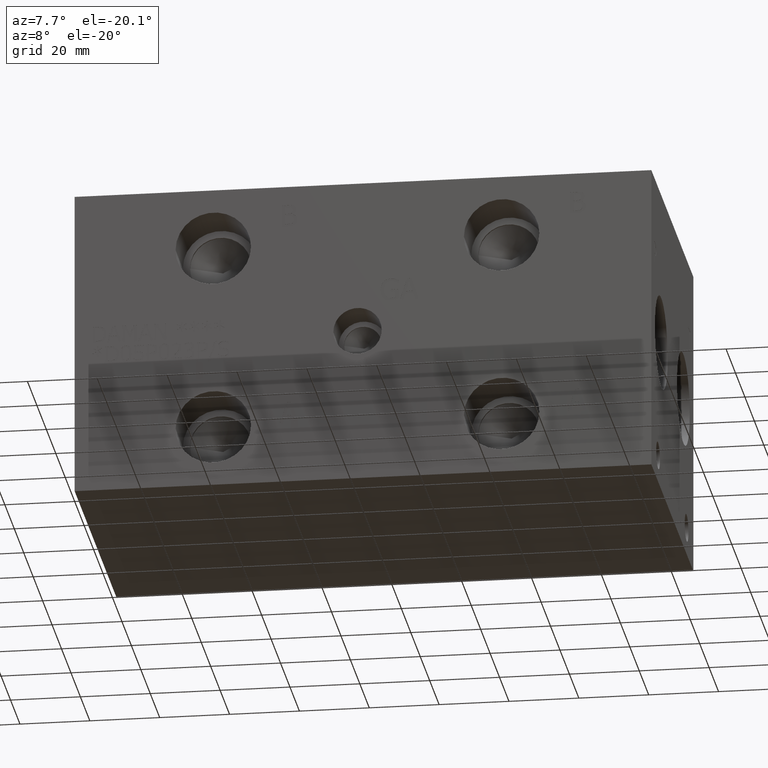
[diagram: clean part render]
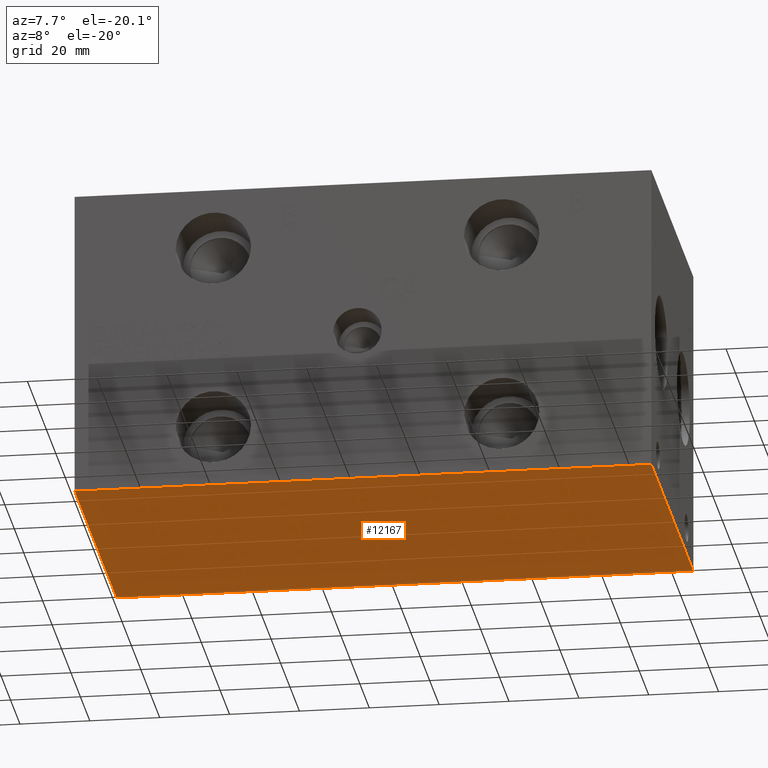
[diagram: same view with one face highlighted and labeled with its STEP entity id]
A machine part, auxiliary view. The second image highlights one B-rep face of the part: STEP entity #12167.
In plain terms, the highlighted planar face has unit normal (0, 0, 1).
Its self-contained STEP definition (entity closure, byte-faithful):
#1546=FACE_OUTER_BOUND('',#2269,.T.);
#2269=EDGE_LOOP('',(#10693,#10694,#10695,#10696));
#2338=LINE('',#15645,#3463);
#3154=LINE('',#19690,#4279);
#3213=LINE('',#19962,#4338);
#3393=LINE('',#20960,#4518);
#3463=VECTOR('',#12946,10.);
#4279=VECTOR('',#14294,10.);
#4338=VECTOR('',#14407,10.);
#4518=VECTOR('',#15255,10.);
#4584=VERTEX_POINT('',#15643);
#4585=VERTEX_POINT('',#15644);
#5332=VERTEX_POINT('',#19689);
#5390=VERTEX_POINT('',#19961);
#5771=EDGE_CURVE('',#4584,#4585,#2338,.T.);
#6877=EDGE_CURVE('',#5332,#4584,#3154,.T.);
#6960=EDGE_CURVE('',#4585,#5390,#3213,.T.);
#7347=EDGE_CURVE('',#5390,#5332,#3393,.T.);
#10693=ORIENTED_EDGE('',*,*,#5771,.F.);
#10694=ORIENTED_EDGE('',*,*,#6877,.F.);
#10695=ORIENTED_EDGE('',*,*,#7347,.F.);
#10696=ORIENTED_EDGE('',*,*,#6960,.F.);
#11057=PLANE('',#12833);
#12167=ADVANCED_FACE('',(#1546),#11057,.F.);
#12833=AXIS2_PLACEMENT_3D('',#20965,#15263,#15264);
#12946=DIRECTION('',(1.,0.,0.));
#14294=DIRECTION('',(0.,-1.,0.));
#14407=DIRECTION('',(0.,1.,0.));
#15255=DIRECTION('',(-1.,0.,0.));
#15263=DIRECTION('center_axis',(0.,0.,1.));
#15264=DIRECTION('ref_axis',(1.,0.,0.));
#15643=CARTESIAN_POINT('',(0.,0.,0.));
#15644=CARTESIAN_POINT('',(165.1,0.,0.));
#15645=CARTESIAN_POINT('',(0.,0.,0.));
#19689=CARTESIAN_POINT('',(0.,88.9,0.));
#19690=CARTESIAN_POINT('',(0.,88.9,0.));
#19961=CARTESIAN_POINT('',(165.1,88.9,0.));
#19962=CARTESIAN_POINT('',(165.1,0.,0.));
#20960=CARTESIAN_POINT('',(165.1,88.9,0.));
#20965=CARTESIAN_POINT('Origin',(82.55,44.45,0.));